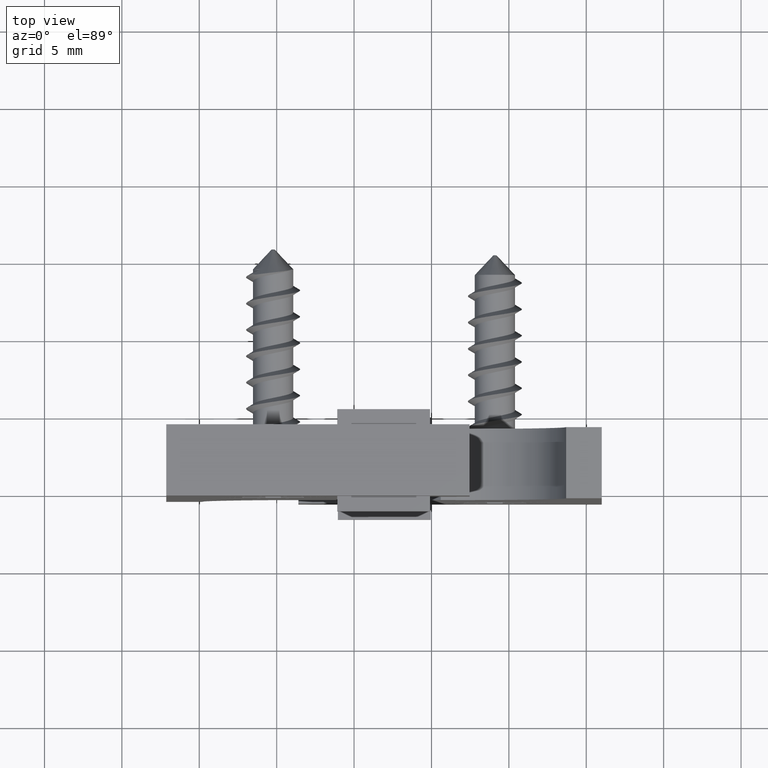
[diagram: clean part render]
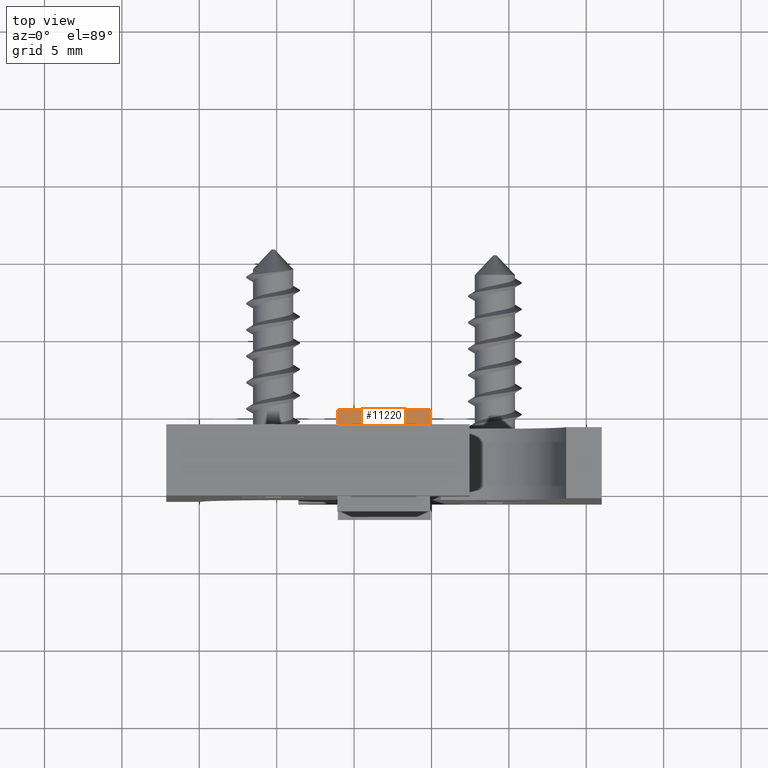
[diagram: same view with one face highlighted and labeled with its STEP entity id]
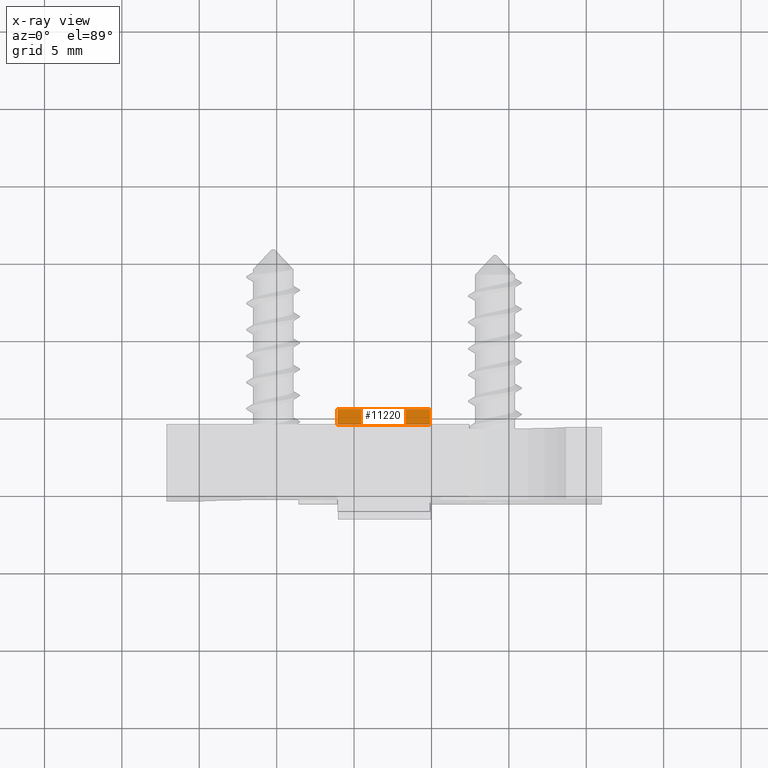
[diagram: x-ray of the same camera — body ghosted, the highlighted face saturated]
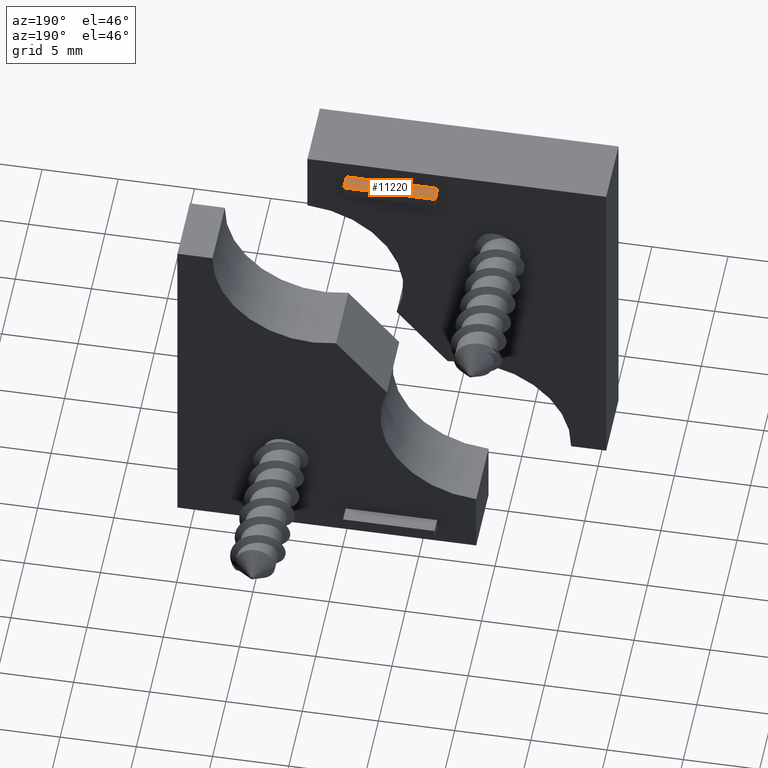
[diagram: same view with one face highlighted and labeled with its STEP entity id]
A machine part, top view. The second image highlights one B-rep face of the part: STEP entity #11220.
The next image is the same camera in x-ray: the body ghosted, the highlighted face saturated — about 0% of this face is hidden behind the body in this view.
A second angle (auxiliary view) of the same face is appended — the face is thin or edge-on in the first view.
In plain terms, the highlighted planar face has unit normal (0, -0, 1).
Its self-contained STEP definition (entity closure, byte-faithful):
#1800=CARTESIAN_POINT('',(14.9575180000002,24.057183,-32.8));
#1810=VERTEX_POINT('',#1800);
#1840=CARTESIAN_POINT('',(20.0886525443084,24.057183,-32.8));
#1850=DIRECTION('',(-1.,0.,0.));
#1860=VECTOR('',#1850,1.);
#1870=LINE('',#1840,#1860);
#1880=CARTESIAN_POINT('',(8.957518,24.057183,-32.8));
#1890=VERTEX_POINT('',#1880);
#1900=EDGE_CURVE('',#1810,#1890,#1870,.T.);
#9270=CARTESIAN_POINT('',(14.9575180000002,25.057183,-32.8));
#9280=VERTEX_POINT('',#9270);
#9450=CARTESIAN_POINT('',(8.957518,25.057183,-32.8));
#9460=VERTEX_POINT('',#9450);
#9490=CARTESIAN_POINT('',(20.0886525443084,25.057183,-32.8));
#9500=DIRECTION('',(-1.,0.,0.));
#9510=VECTOR('',#9500,1.);
#9520=LINE('',#9490,#9510);
#9530=EDGE_CURVE('',#9280,#9460,#9520,.T.);
#9770=CARTESIAN_POINT('',(8.957518,24.057183,-32.8));
#9780=DIRECTION('',(0.,1.,0.));
#9790=VECTOR('',#9780,1.);
#9800=LINE('',#9770,#9790);
#9810=EDGE_CURVE('',#1890,#9460,#9800,.T.);
#10370=CARTESIAN_POINT('',(14.9575180000002,24.057183,-32.8));
#10380=DIRECTION('',(0.,1.,0.));
#10390=VECTOR('',#10380,1.);
#10400=LINE('',#10370,#10390);
#10410=EDGE_CURVE('',#1810,#9280,#10400,.T.);
#11110=CARTESIAN_POINT('',(8.907518,24.057183,-32.8));
#11120=DIRECTION('',(0.,0.,-1.));
#11130=DIRECTION('',(1.,0.,0.));
#11140=AXIS2_PLACEMENT_3D('',#11110,#11120,#11130);
#11150=PLANE('',#11140);
#11160=ORIENTED_EDGE('',*,*,#10410,.F.);
#11170=ORIENTED_EDGE('',*,*,#9530,.F.);
#11180=ORIENTED_EDGE('',*,*,#9810,.T.);
#11190=ORIENTED_EDGE('',*,*,#1900,.T.);
#11200=EDGE_LOOP('',(#11190,#11180,#11170,#11160));
#11210=FACE_OUTER_BOUND('',#11200,.T.);
#11220=ADVANCED_FACE('',(#11210),#11150,.T.);